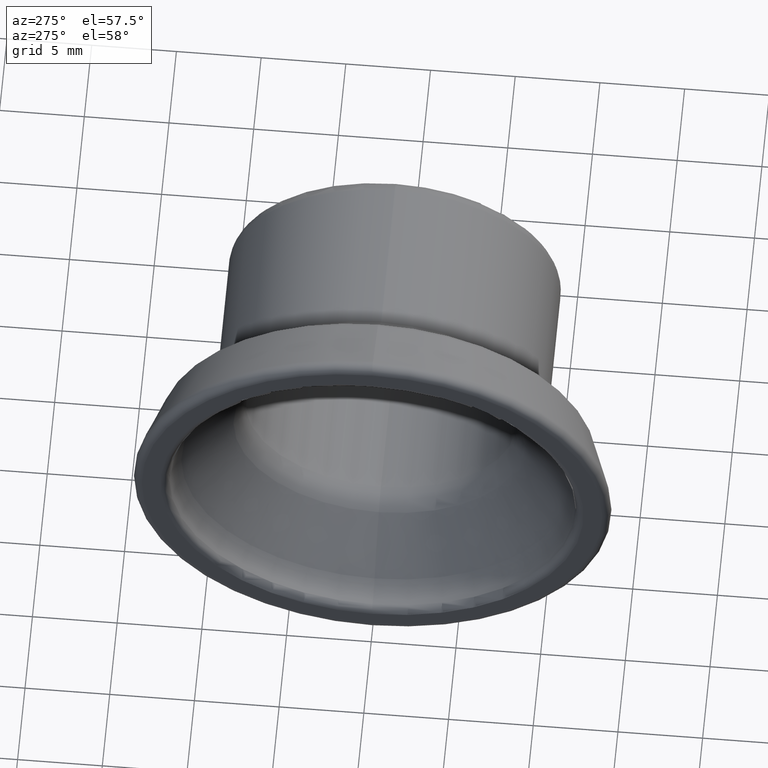
[diagram: clean part render]
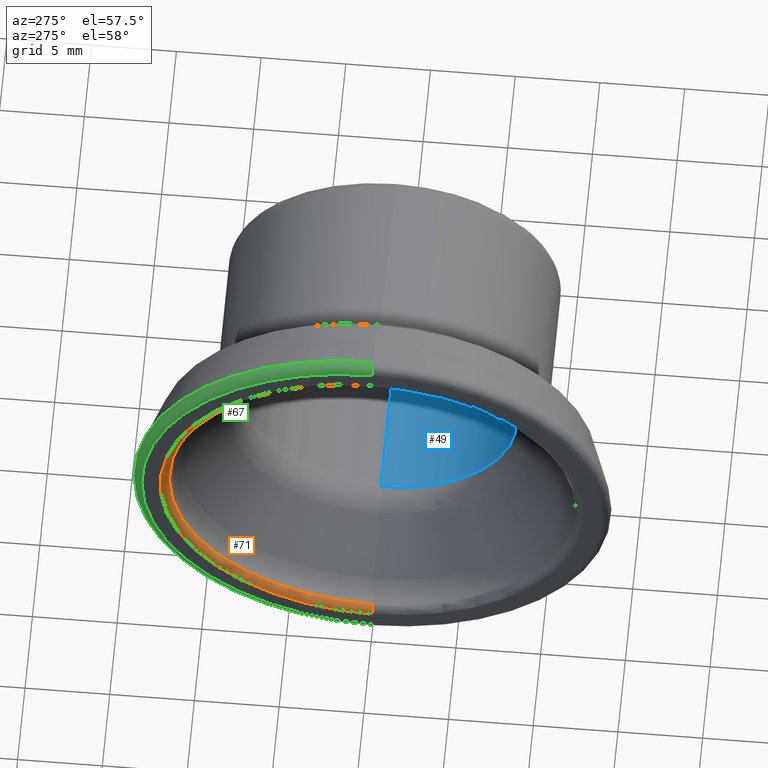
[diagram: same view with three faces highlighted in distinct colors, each labeled with its STEP entity id]
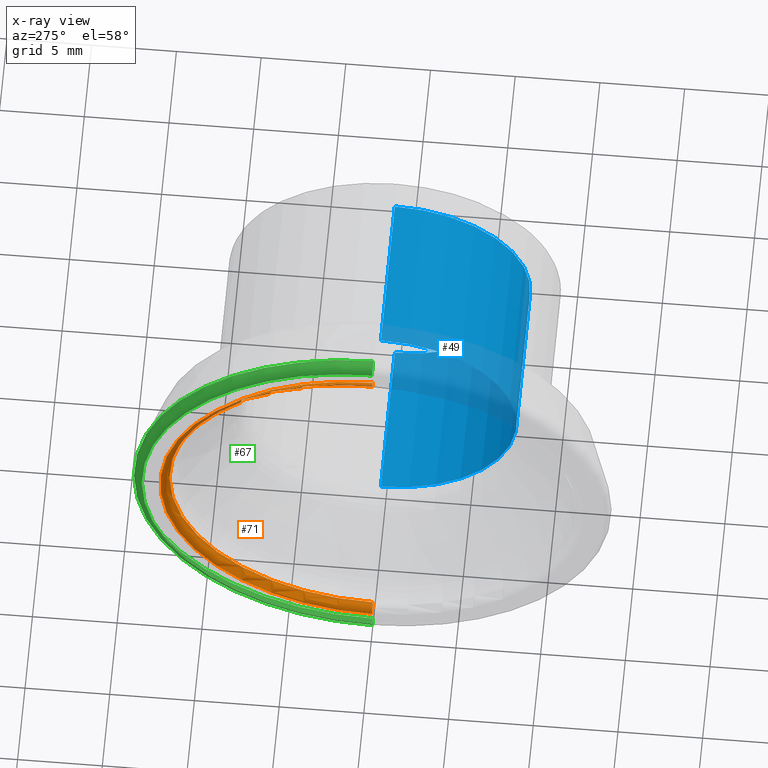
[diagram: x-ray of the same camera — body ghosted, the three highlighted faces saturated]
A machine part, auxiliary view with three faces highlighted in distinct colors.
The next image is the same camera in x-ray (body ghosted, the three faces saturated) — at least one of them is partly hidden behind the body in this view.
Their STEP definitions:

[orange] entity #71 — the highlighted toroidal blend (fillet) surface has major radius 12.5 mm and minor (blend) radius 0.5 mm.
#36=TOROIDAL_SURFACE('',#526,12.5,0.5);
#71=ADVANCED_FACE('',(#100),#36,.T.);
#100=FACE_OUTER_BOUND('',#135,.F.);
#135=EDGE_LOOP('',(#242,#243,#244,#245));
#242=ORIENTED_EDGE('',*,*,#342,.F.);
#243=ORIENTED_EDGE('',*,*,#344,.F.);
#244=ORIENTED_EDGE('',*,*,#343,.T.);
#245=ORIENTED_EDGE('',*,*,#331,.T.);
#331=EDGE_CURVE('',#398,#397,#381,.T.);
#342=EDGE_CURVE('',#394,#397,#388,.T.);
#343=EDGE_CURVE('',#393,#398,#389,.T.);
#344=EDGE_CURVE('',#393,#394,#390,.T.);
#381=CIRCLE('',#488,12.5);
#388=CIRCLE('',#495,0.5);
#389=CIRCLE('',#496,0.5);
#390=CIRCLE('',#497,12.);
#393=VERTEX_POINT('',#703);
#394=VERTEX_POINT('',#704);
#397=VERTEX_POINT('',#707);
#398=VERTEX_POINT('',#708);
#488=AXIS2_PLACEMENT_3D('',#777,#611,#612);
#495=AXIS2_PLACEMENT_3D('',#788,#629,#630);
#496=AXIS2_PLACEMENT_3D('',#789,#631,#632);
#497=AXIS2_PLACEMENT_3D('',#790,#633,#634);
#526=AXIS2_PLACEMENT_3D('',#819,#691,#692);
#611=DIRECTION('',(1.,0.,0.));
#612=DIRECTION('',(0.,0.,-1.));
#629=DIRECTION('',(0.,1.,0.));
#630=DIRECTION('',(0.,0.,-1.));
#631=DIRECTION('',(0.,-1.,0.));
#632=DIRECTION('',(0.,0.,1.));
#633=DIRECTION('',(1.,0.,0.));
#634=DIRECTION('',(0.,0.,-1.));
#691=DIRECTION('',(1.,0.,0.));
#692=DIRECTION('',(0.,0.,-1.));
#703=CARTESIAN_POINT('',(51.0150000130991,-49.9999958811694,-12.0000001271772));
#704=CARTESIAN_POINT('',(51.0150000130991,-49.9999958811694,11.9999998728228));
#707=CARTESIAN_POINT('',(50.5150000130991,-49.9999958811694,12.4999998728228));
#708=CARTESIAN_POINT('',(50.5150000130991,-49.9999958811694,-12.5000001271772));
#777=CARTESIAN_POINT('',(50.5150000130991,-49.9999958811694,-1.27177200789976E-07));
#788=CARTESIAN_POINT('',(51.0150000130991,-49.9999958811694,12.4999998728228));
#789=CARTESIAN_POINT('',(51.0150000130991,-49.9999958811694,-12.5000001271772));
#790=CARTESIAN_POINT('',(51.0150000130991,-49.9999958811694,-1.2717720075936E-07));
#819=CARTESIAN_POINT('',(51.0150000130991,-49.9999958811694,-1.2717720075936E-07));

[blue] entity #49 — the highlighted cylindrical surface (partial cylindrical patch) has radius 8 mm, axis along (1, 0, 0).
#41=CYLINDRICAL_SURFACE('',#504,8.);
#49=ADVANCED_FACE('',(#78),#41,.F.);
#78=FACE_OUTER_BOUND('',#112,.F.);
#112=EDGE_LOOP('',(#154,#155,#156,#157));
#154=ORIENTED_EDGE('',*,*,#307,.T.);
#155=ORIENTED_EDGE('',*,*,#303,.T.);
#156=ORIENTED_EDGE('',*,*,#308,.F.);
#157=ORIENTED_EDGE('',*,*,#305,.F.);
#267=LINE('',#753,#279);
#268=LINE('',#754,#280);
#279=VECTOR('',#569,9.3715728752538);
#280=VECTOR('',#570,9.37157287525379);
#303=EDGE_CURVE('',#412,#411,#359,.T.);
#305=EDGE_CURVE('',#410,#409,#361,.T.);
#307=EDGE_CURVE('',#410,#412,#267,.T.);
#308=EDGE_CURVE('',#409,#411,#268,.T.);
#359=CIRCLE('',#466,8.);
#361=CIRCLE('',#468,8.);
#409=VERTEX_POINT('',#719);
#410=VERTEX_POINT('',#720);
#411=VERTEX_POINT('',#721);
#412=VERTEX_POINT('',#722);
#466=AXIS2_PLACEMENT_3D('',#749,#561,#562);
#468=AXIS2_PLACEMENT_3D('',#751,#565,#566);
#504=AXIS2_PLACEMENT_3D('',#797,#647,#648);
#561=DIRECTION('',(1.,0.,0.));
#562=DIRECTION('',(0.,0.,1.));
#565=DIRECTION('',(1.,0.,0.));
#566=DIRECTION('',(0.,0.,1.));
#569=DIRECTION('',(-1.,0.,0.));
#570=DIRECTION('',(-1.,0.,0.));
#647=DIRECTION('',(1.,0.,0.));
#648=DIRECTION('',(0.,0.,1.));
#719=CARTESIAN_POINT('',(65.9150000130991,-49.9999958811694,-8.0000001271772));
#720=CARTESIAN_POINT('',(65.9150000130991,-49.9999958811694,7.9999998728228));
#721=CARTESIAN_POINT('',(56.5434271378453,-49.9999958811694,-8.0000001271772));
#722=CARTESIAN_POINT('',(56.5434271378453,-49.9999958811694,7.9999998728228));
#749=CARTESIAN_POINT('',(56.5434271378453,-49.9999958811694,-1.27177200420841E-07));
#751=CARTESIAN_POINT('',(65.9150000130991,-49.9999958811694,-1.27177199846998E-07));
#753=CARTESIAN_POINT('',(65.9150000130991,-49.9999958811694,7.9999998728228));
#754=CARTESIAN_POINT('',(65.9150000130991,-49.9999958811694,-8.0000001271772));
#797=CARTESIAN_POINT('',(66.7150000130991,-49.9999958811694,-1.27177199798012E-07));

[green] entity #67 — the highlighted toroidal blend (fillet) surface has major radius 13.5905 mm and minor (blend) radius 0.5 mm.
#34=TOROIDAL_SURFACE('',#522,13.5904975447386,0.5);
#67=ADVANCED_FACE('',(#96),#34,.T.);
#96=FACE_OUTER_BOUND('',#131,.F.);
#131=EDGE_LOOP('',(#226,#227,#228,#229));
#226=ORIENTED_EDGE('',*,*,#337,.F.);
#227=ORIENTED_EDGE('',*,*,#333,.F.);
#228=ORIENTED_EDGE('',*,*,#338,.T.);
#229=ORIENTED_EDGE('',*,*,#315,.T.);
#315=EDGE_CURVE('',#406,#405,#369,.T.);
#333=EDGE_CURVE('',#396,#395,#383,.T.);
#337=EDGE_CURVE('',#395,#405,#385,.T.);
#338=EDGE_CURVE('',#396,#406,#386,.T.);
#369=CIRCLE('',#476,14.061368500536);
#383=CIRCLE('',#490,13.5904975447386);
#385=CIRCLE('',#492,0.5);
#386=CIRCLE('',#493,0.5);
#395=VERTEX_POINT('',#705);
#396=VERTEX_POINT('',#706);
#405=VERTEX_POINT('',#715);
#406=VERTEX_POINT('',#716);
#476=AXIS2_PLACEMENT_3D('',#761,#583,#584);
#490=AXIS2_PLACEMENT_3D('',#779,#615,#616);
#492=AXIS2_PLACEMENT_3D('',#783,#621,#622);
#493=AXIS2_PLACEMENT_3D('',#784,#623,#624);
#522=AXIS2_PLACEMENT_3D('',#815,#683,#684);
#583=DIRECTION('',(1.,0.,0.));
#584=DIRECTION('',(0.,0.,-1.));
#615=DIRECTION('',(1.,0.,0.));
#616=DIRECTION('',(0.,0.,-1.));
#621=DIRECTION('',(0.,1.,0.));
#622=DIRECTION('',(-1.,0.,0.));
#623=DIRECTION('',(0.,-1.,0.));
#624=DIRECTION('',(-1.,0.,0.));
#683=DIRECTION('',(1.,0.,0.));
#684=DIRECTION('',(0.,0.,-1.));
#705=CARTESIAN_POINT('',(50.5150000130991,-49.9999958811694,13.5904974175614));
#706=CARTESIAN_POINT('',(50.5150000130991,-49.9999958811694,-13.5904976719158));
#715=CARTESIAN_POINT('',(51.1831682115982,-49.9999958811694,14.0613683733588));
#716=CARTESIAN_POINT('',(51.1831682115982,-49.9999958811694,-14.0613686277132));
#761=CARTESIAN_POINT('',(51.1831682115982,-49.9999958811694,-1.27177200749062E-07));
#779=CARTESIAN_POINT('',(50.5150000130991,-49.9999958811694,-1.27177200789976E-07));
#783=CARTESIAN_POINT('',(51.0150000130991,-49.9999958811694,13.5904974175614));
#784=CARTESIAN_POINT('',(51.0150000130991,-49.9999958811694,-13.5904976719158));
#815=CARTESIAN_POINT('',(51.0150000130991,-49.9999958811694,-1.2717720075936E-07));